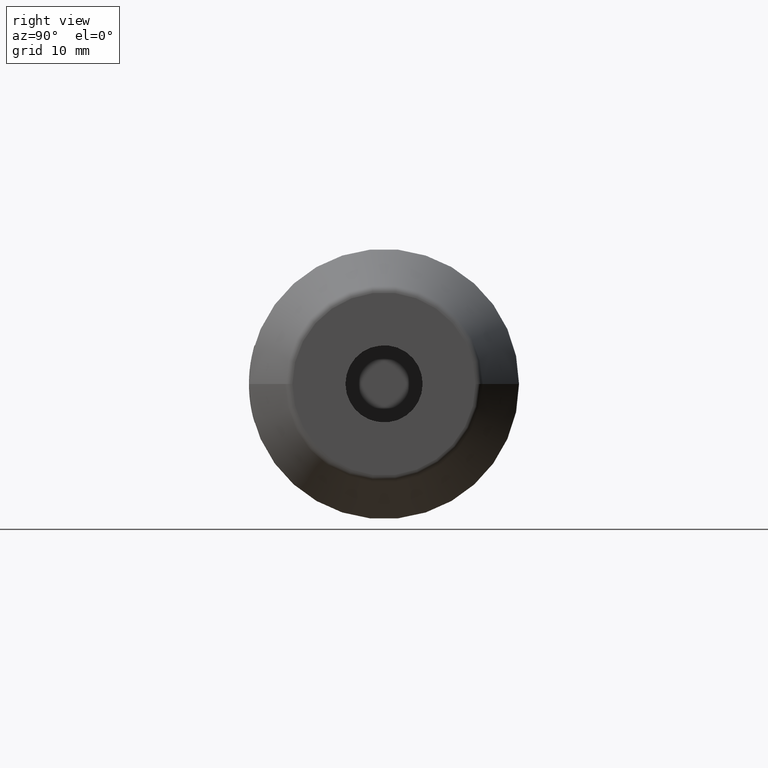
[diagram: clean part render]
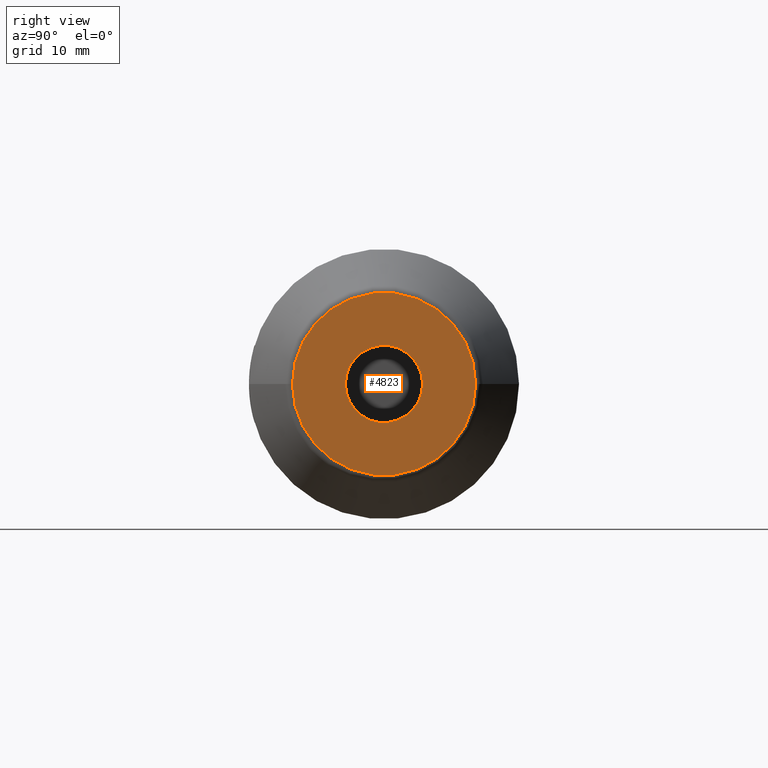
[diagram: same view with one face highlighted and labeled with its STEP entity id]
A machine part, right view. The second image highlights one B-rep face of the part: STEP entity #4823.
In plain terms, the highlighted planar face has unit normal (1, 0, 0).
Its self-contained STEP definition (entity closure, byte-faithful):
#1560=CARTESIAN_POINT('',(6.5E1,0.E0,0.E0));
#1561=DIRECTION('',(1.E0,0.E0,0.E0));
#1562=DIRECTION('',(0.E0,1.E0,0.E0));
#1563=AXIS2_PLACEMENT_3D('',#1560,#1561,#1562);
#1565=CARTESIAN_POINT('',(6.5E1,0.E0,0.E0));
#1566=DIRECTION('',(1.E0,0.E0,0.E0));
#1567=DIRECTION('',(0.E0,-1.E0,0.E0));
#1568=AXIS2_PLACEMENT_3D('',#1565,#1566,#1567);
#1570=CARTESIAN_POINT('',(6.5E1,0.E0,0.E0));
#1571=DIRECTION('',(-1.E0,0.E0,0.E0));
#1572=DIRECTION('',(0.E0,1.E0,0.E0));
#1573=AXIS2_PLACEMENT_3D('',#1570,#1571,#1572);
#1575=CARTESIAN_POINT('',(6.5E1,0.E0,0.E0));
#1576=DIRECTION('',(-1.E0,0.E0,0.E0));
#1577=DIRECTION('',(0.E0,-1.E0,0.E0));
#1578=AXIS2_PLACEMENT_3D('',#1575,#1576,#1577);
#3304=CARTESIAN_POINT('',(6.5E1,5.E0,0.E0));
#3305=CARTESIAN_POINT('',(6.5E1,-5.E0,0.E0));
#3306=VERTEX_POINT('',#3304);
#3307=VERTEX_POINT('',#3305);
#3312=CARTESIAN_POINT('',(6.5E1,1.186292973919E1,0.E0));
#3313=CARTESIAN_POINT('',(6.5E1,-1.186292973919E1,0.E0));
#3314=VERTEX_POINT('',#3312);
#3315=VERTEX_POINT('',#3313);
#4808=CARTESIAN_POINT('',(6.5E1,0.E0,0.E0));
#4809=DIRECTION('',(1.E0,0.E0,0.E0));
#4810=DIRECTION('',(0.E0,-1.E0,0.E0));
#4811=AXIS2_PLACEMENT_3D('',#4808,#4809,#4810);
#4812=PLANE('',#4811);
#4814=ORIENTED_EDGE('',*,*,#4813,.T.);
#4816=ORIENTED_EDGE('',*,*,#4815,.T.);
#4817=EDGE_LOOP('',(#4814,#4816));
#4818=FACE_OUTER_BOUND('',#4817,.F.);
#4819=ORIENTED_EDGE('',*,*,#4771,.T.);
#4820=ORIENTED_EDGE('',*,*,#4792,.T.);
#4821=EDGE_LOOP('',(#4819,#4820));
#4822=FACE_BOUND('',#4821,.F.);
#4823=ADVANCED_FACE('',(#4818,#4822),#4812,.T.);
#1564=CIRCLE('',#1563,5.E0);
#1569=CIRCLE('',#1568,5.E0);
#1574=CIRCLE('',#1573,1.186292973919E1);
#1579=CIRCLE('',#1578,1.186292973919E1);
#4771=EDGE_CURVE('',#3306,#3307,#1564,.T.);
#4792=EDGE_CURVE('',#3307,#3306,#1569,.T.);
#4813=EDGE_CURVE('',#3314,#3315,#1574,.T.);
#4815=EDGE_CURVE('',#3315,#3314,#1579,.T.);